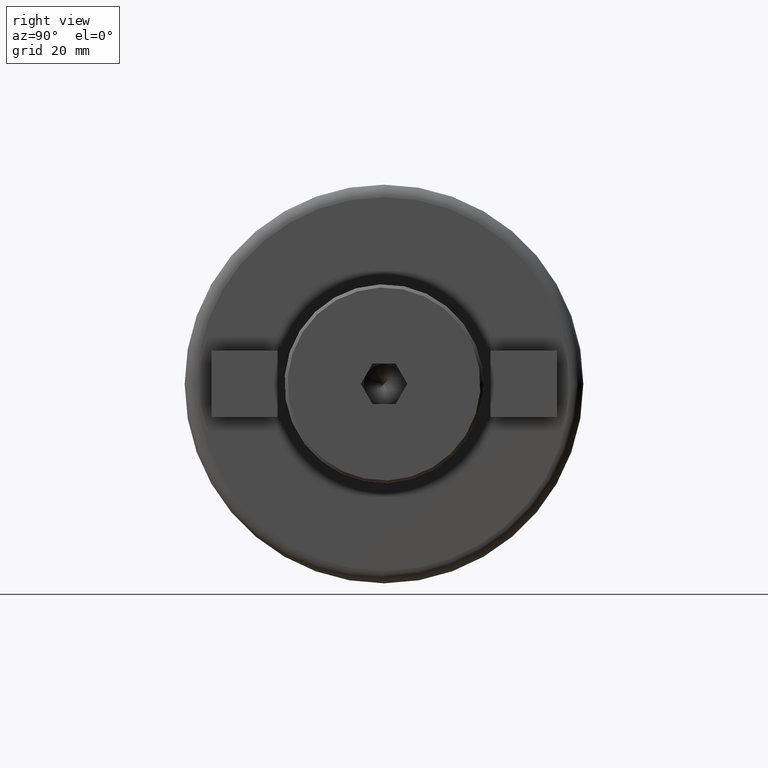
[diagram: clean part render]
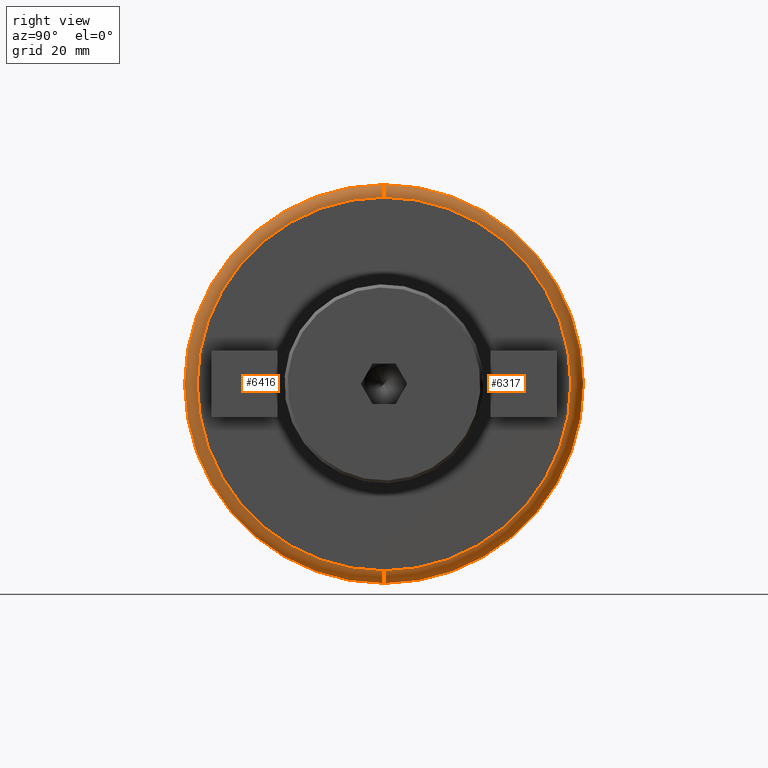
[diagram: same view with one multi-face feature highlighted, each face labeled with its STEP entity id]
A machine part, right view. The highlighted faces form ONE feature: a constant-radius fillet chain: 2 tangent blend faces with common blend radius 3 mm. The faces share edges in the B-rep.
Their STEP definitions:
[1] entity #6317 (Torus):
#330 = DIRECTION ( 'NONE',  ( -1.000000000000000000, -0.0000000000000000000, -0.0000000000000000000 ) ) ;
#332 = CARTESIAN_POINT ( 'NONE',  ( 71.99999999999998600, 0.0000000000000000000, 0.0000000000000000000 ) ) ;
#335 = DIRECTION ( 'NONE',  ( 0.0000000000000000000, 0.0000000000000000000, 1.000000000000000000 ) ) ;
#683 = CIRCLE ( 'NONE', #3208, 47.62500000000000000 ) ;
#1034 = FACE_OUTER_BOUND ( 'NONE', #6877, .T. ) ;
#1038 = TOROIDAL_SURFACE ( 'NONE', #7241, 44.62500000000000000, 3.000000000000002700 ) ;
#2232 = CIRCLE ( 'NONE', #3174, 3.000000000000002700 ) ;
#2233 = CIRCLE ( 'NONE', #3179, 3.000000000000002700 ) ;
#2234 = CIRCLE ( 'NONE', #3182, 44.62499999999997900 ) ;
#2568 = EDGE_CURVE ( 'NONE', #3979, #3984, #2232, .T. ) ;
#2569 = EDGE_CURVE ( 'NONE', #9276, #3863, #2233, .T. ) ;
#2570 = EDGE_CURVE ( 'NONE', #9276, #3979, #2234, .T. ) ;
#2979 = EDGE_CURVE ( 'NONE', #3863, #3984, #683, .T. ) ;
#3174 = AXIS2_PLACEMENT_3D ( 'NONE', #4870, #4926, #4927 ) ;
#3179 = AXIS2_PLACEMENT_3D ( 'NONE', #4928, #4929, #4930 ) ;
#3182 = AXIS2_PLACEMENT_3D ( 'NONE', #4931, #4932, #4933 ) ;
#3208 = AXIS2_PLACEMENT_3D ( 'NONE', #5279, #5281, #5282 ) ;
#3863 = VERTEX_POINT ( 'NONE', #5770 ) ;
#3979 = VERTEX_POINT ( 'NONE', #5822 ) ;
#3984 = VERTEX_POINT ( 'NONE', #5827 ) ;
#4035 = ORIENTED_EDGE ( 'NONE', *, *, #2570, .T. ) ;
#4041 = ORIENTED_EDGE ( 'NONE', *, *, #2569, .F. ) ;
#4045 = ORIENTED_EDGE ( 'NONE', *, *, #2568, .T. ) ;
#4056 = ORIENTED_EDGE ( 'NONE', *, *, #2979, .F. ) ;
#4870 = CARTESIAN_POINT ( 'NONE',  ( 71.99999999999998600, 5.464986341195063100E-015, -44.62500000000000000 ) ) ;
#4926 = DIRECTION ( 'NONE',  ( -0.0000000000000000000, 1.000000000000000000, 1.224646799147353200E-016 ) ) ;
#4927 = DIRECTION ( 'NONE',  ( 0.0000000000000000000, -1.224646799147352000E-016, 1.000000000000000000 ) ) ;
#4928 = CARTESIAN_POINT ( 'NONE',  ( 71.99999999999998600, 0.0000000000000000000, 44.62500000000000000 ) ) ;
#4929 = DIRECTION ( 'NONE',  ( 0.0000000000000000000, -1.000000000000000000, 0.0000000000000000000 ) ) ;
#4930 = DIRECTION ( 'NONE',  ( 0.0000000000000000000, 0.0000000000000000000, -1.000000000000000000 ) ) ;
#4931 = CARTESIAN_POINT ( 'NONE',  ( 74.99999999999998600, 0.0000000000000000000, 0.0000000000000000000 ) ) ;
#4932 = DIRECTION ( 'NONE',  ( -1.000000000000000000, -0.0000000000000000000, -0.0000000000000000000 ) ) ;
#4933 = DIRECTION ( 'NONE',  ( 0.0000000000000000000, 0.0000000000000000000, 1.000000000000000000 ) ) ;
#5279 = CARTESIAN_POINT ( 'NONE',  ( 71.99999999999997200, 0.0000000000000000000, 0.0000000000000000000 ) ) ;
#5281 = DIRECTION ( 'NONE',  ( -1.000000000000000000, -0.0000000000000000000, -0.0000000000000000000 ) ) ;
#5282 = DIRECTION ( 'NONE',  ( 0.0000000000000000000, 0.0000000000000000000, 1.000000000000000000 ) ) ;
#5770 = CARTESIAN_POINT ( 'NONE',  ( 71.99999999999997200, 0.0000000000000000000, 47.62500000000000000 ) ) ;
#5822 = CARTESIAN_POINT ( 'NONE',  ( 74.99999999999998600, 5.648683361067165000E-015, -44.62499999999997900 ) ) ;
#5827 = CARTESIAN_POINT ( 'NONE',  ( 71.99999999999997200, 5.832380380939270100E-015, -47.62500000000000000 ) ) ;
#6317 = ADVANCED_FACE ( 'NONE', ( #1034 ), #1038, .T. ) ;
#6877 = EDGE_LOOP ( 'NONE', ( #4035, #4045, #4056, #4041 ) ) ;
#7241 = AXIS2_PLACEMENT_3D ( 'NONE', #332, #330, #335 ) ;
#8847 = CARTESIAN_POINT ( 'NONE',  ( 74.99999999999998600, 0.0000000000000000000, 44.62499999999997900 ) ) ;
#9276 = VERTEX_POINT ( 'NONE', #8847 ) ;
[2] entity #6416 (Torus):
#741 = CIRCLE ( 'NONE', #7093, 47.62500000000000000 ) ;
#753 = CIRCLE ( 'NONE', #7116, 44.62499999999997900 ) ;
#1670 = EDGE_LOOP ( 'NONE', ( #2641, #2643, #2645, #2647 ) ) ;
#2232 = CIRCLE ( 'NONE', #3174, 3.000000000000002700 ) ;
#2233 = CIRCLE ( 'NONE', #3179, 3.000000000000002700 ) ;
#2568 = EDGE_CURVE ( 'NONE', #3979, #3984, #2232, .T. ) ;
#2569 = EDGE_CURVE ( 'NONE', #9276, #3863, #2233, .T. ) ;
#2641 = ORIENTED_EDGE ( 'NONE', *, *, #2568, .F. ) ;
#2643 = ORIENTED_EDGE ( 'NONE', *, *, #3044, .T. ) ;
#2645 = ORIENTED_EDGE ( 'NONE', *, *, #2569, .T. ) ;
#2647 = ORIENTED_EDGE ( 'NONE', *, *, #3035, .F. ) ;
#3035 = EDGE_CURVE ( 'NONE', #3984, #3863, #741, .T. ) ;
#3044 = EDGE_CURVE ( 'NONE', #3979, #9276, #753, .T. ) ;
#3174 = AXIS2_PLACEMENT_3D ( 'NONE', #4870, #4926, #4927 ) ;
#3179 = AXIS2_PLACEMENT_3D ( 'NONE', #4928, #4929, #4930 ) ;
#3863 = VERTEX_POINT ( 'NONE', #5770 ) ;
#3979 = VERTEX_POINT ( 'NONE', #5822 ) ;
#3984 = VERTEX_POINT ( 'NONE', #5827 ) ;
#4870 = CARTESIAN_POINT ( 'NONE',  ( 71.99999999999998600, 5.464986341195063100E-015, -44.62500000000000000 ) ) ;
#4926 = DIRECTION ( 'NONE',  ( -0.0000000000000000000, 1.000000000000000000, 1.224646799147353200E-016 ) ) ;
#4927 = DIRECTION ( 'NONE',  ( 0.0000000000000000000, -1.224646799147352000E-016, 1.000000000000000000 ) ) ;
#4928 = CARTESIAN_POINT ( 'NONE',  ( 71.99999999999998600, 0.0000000000000000000, 44.62500000000000000 ) ) ;
#4929 = DIRECTION ( 'NONE',  ( 0.0000000000000000000, -1.000000000000000000, 0.0000000000000000000 ) ) ;
#4930 = DIRECTION ( 'NONE',  ( 0.0000000000000000000, 0.0000000000000000000, -1.000000000000000000 ) ) ;
#5651 = CARTESIAN_POINT ( 'NONE',  ( 71.99999999999997200, 0.0000000000000000000, 0.0000000000000000000 ) ) ;
#5653 = DIRECTION ( 'NONE',  ( -1.000000000000000000, -0.0000000000000000000, -0.0000000000000000000 ) ) ;
#5654 = DIRECTION ( 'NONE',  ( 0.0000000000000000000, 0.0000000000000000000, 1.000000000000000000 ) ) ;
#5670 = CARTESIAN_POINT ( 'NONE',  ( 74.99999999999998600, 0.0000000000000000000, 0.0000000000000000000 ) ) ;
#5678 = DIRECTION ( 'NONE',  ( -1.000000000000000000, -0.0000000000000000000, -0.0000000000000000000 ) ) ;
#5679 = DIRECTION ( 'NONE',  ( 0.0000000000000000000, 0.0000000000000000000, 1.000000000000000000 ) ) ;
#5770 = CARTESIAN_POINT ( 'NONE',  ( 71.99999999999997200, 0.0000000000000000000, 47.62500000000000000 ) ) ;
#5822 = CARTESIAN_POINT ( 'NONE',  ( 74.99999999999998600, 5.648683361067165000E-015, -44.62499999999997900 ) ) ;
#5827 = CARTESIAN_POINT ( 'NONE',  ( 71.99999999999997200, 5.832380380939270100E-015, -47.62500000000000000 ) ) ;
#6416 = ADVANCED_FACE ( 'NONE', ( #7422 ), #7426, .T. ) ;
#7093 = AXIS2_PLACEMENT_3D ( 'NONE', #5651, #5653, #5654 ) ;
#7116 = AXIS2_PLACEMENT_3D ( 'NONE', #5670, #5678, #5679 ) ;
#7353 = AXIS2_PLACEMENT_3D ( 'NONE', #7927, #7923, #7930 ) ;
#7422 = FACE_OUTER_BOUND ( 'NONE', #1670, .T. ) ;
#7426 = TOROIDAL_SURFACE ( 'NONE', #7353, 44.62500000000000000, 3.000000000000002700 ) ;
#7923 = DIRECTION ( 'NONE',  ( -1.000000000000000000, -0.0000000000000000000, -0.0000000000000000000 ) ) ;
#7927 = CARTESIAN_POINT ( 'NONE',  ( 71.99999999999998600, 0.0000000000000000000, 0.0000000000000000000 ) ) ;
#7930 = DIRECTION ( 'NONE',  ( 0.0000000000000000000, 0.0000000000000000000, 1.000000000000000000 ) ) ;
#8847 = CARTESIAN_POINT ( 'NONE',  ( 74.99999999999998600, 0.0000000000000000000, 44.62499999999997900 ) ) ;
#9276 = VERTEX_POINT ( 'NONE', #8847 ) ;